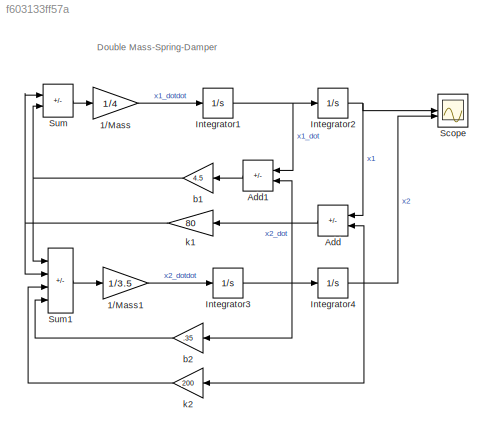
MODEL slx_f603133ff57a
KIND model
CONFIG AbsTol = auto
CONFIG EnableMultiTasking = off
CONFIG FixedStep = auto
CONFIG MaxStep = auto
CONFIG MinStep = auto
CONFIG RelTol = 1e-3
CONFIG SampleTimeConstraint = Unconstrained
CONFIG SolverName = VariableStepAuto
CONFIG StartTime = 0.0
CONFIG StopTime = 20
BLOCK [Gain] 1//Mass
  Gain = 1/4
  OutDataTypeStr = Inherit: Same as input
  ParamDataTypeStr = Inherit: Same as input
  SaturateOnIntegerOverflow = on
BLOCK [Gain] 1//Mass1
  Gain = 1/3.5
  OutDataTypeStr = Inherit: Same as input
  ParamDataTypeStr = Inherit: Same as input
  SaturateOnIntegerOverflow = on
BLOCK [Sum] Add
  IconShape = rectangular
  Inputs = +-
BLOCK [Sum] Add1
  IconShape = rectangular
  Inputs = +-
BLOCK [Integrator] Integrator1
BLOCK [Integrator] Integrator2
  AttributesFormatString = x1(0) = %<InitialCondition> m
  InitialCondition = 4
BLOCK [Integrator] Integrator3
BLOCK [Integrator] Integrator4
  AttributesFormatString = x2(0) = %<InitialCondition> m
  InitialCondition = 2
BLOCK [Scope] Scope
  Floating = off
  NumInputPorts = 2
  ScopeSpecificationString = Simulink.scopes.TimeScopeBlockCfg('CurrentConfiguration', extmgr.ConfigurationSet(extmgr.Configuration('Core','General UI',true),extmgr.Configuration('Core','Source UI',true),extmgr.Configuration('Sources','WiredSimulink',true),extmgr.Configuration('Visuals','Time Domain',true,'SerializedDisplays',{struct('MinYLimReal','-4.371','MaxYLimReal','4.93011','YLabelReal','','MinYLimMag','0.00000','MaxYLi...<+1346ch>
BLOCK [Sum] Sum
  IconShape = rectangular
  InputSameDT = on
  Inputs = --
  OutDataTypeStr = Inherit: Same as first input
  SaturateOnIntegerOverflow = on
BLOCK [Sum] Sum1
  IconShape = rectangular
  InputSameDT = on
  Inputs = ++--
  OutDataTypeStr = Inherit: Same as first input
  SaturateOnIntegerOverflow = on
BLOCK [Gain] b1
  Gain = 4.5
  OutDataTypeStr = Inherit: Same as input
  ParamDataTypeStr = Inherit: Same as input
  SaturateOnIntegerOverflow = on
BLOCK [Gain] b2
  Gain = .35
  OutDataTypeStr = Inherit: Same as input
  ParamDataTypeStr = Inherit: Same as input
  SaturateOnIntegerOverflow = on
BLOCK [Gain] k1
  Gain = 80
  OutDataTypeStr = Inherit: Same as input
  ParamDataTypeStr = Inherit: Same as input
  SaturateOnIntegerOverflow = on
BLOCK [Gain] k2
  Gain = 200
  OutDataTypeStr = Inherit: Same as input
  ParamDataTypeStr = Inherit: Same as input
  SaturateOnIntegerOverflow = on
ANNOTATION (root): Double Mass-Spring-Damper
LINE 1//Mass1:1 -> Integrator3:1
LINE 1//Mass:1 -> Integrator1:1
LINE Add1:1 -> b1:1
LINE Add:1 -> k1:1
NET Integrator1:1 -> Add1:1, Integrator2:1
NET Integrator2:1 -> Add:1, Scope:1
NET Integrator3:1 -> Add1:2, Integrator4:1, b2:1
NET Integrator4:1 -> Add:2, Scope:2, k2:1
LINE Sum1:1 -> 1//Mass1:1
LINE Sum:1 -> 1//Mass:1
NET b1:1 -> Sum1:1, Sum:2
LINE b2:1 -> Sum1:4
NET k1:1 -> Sum1:2, Sum:1
LINE k2:1 -> Sum1:3
note: NET lines group one-source signal fan-out (src -> all destinations, sorted); 1:1 wires keep LINE
